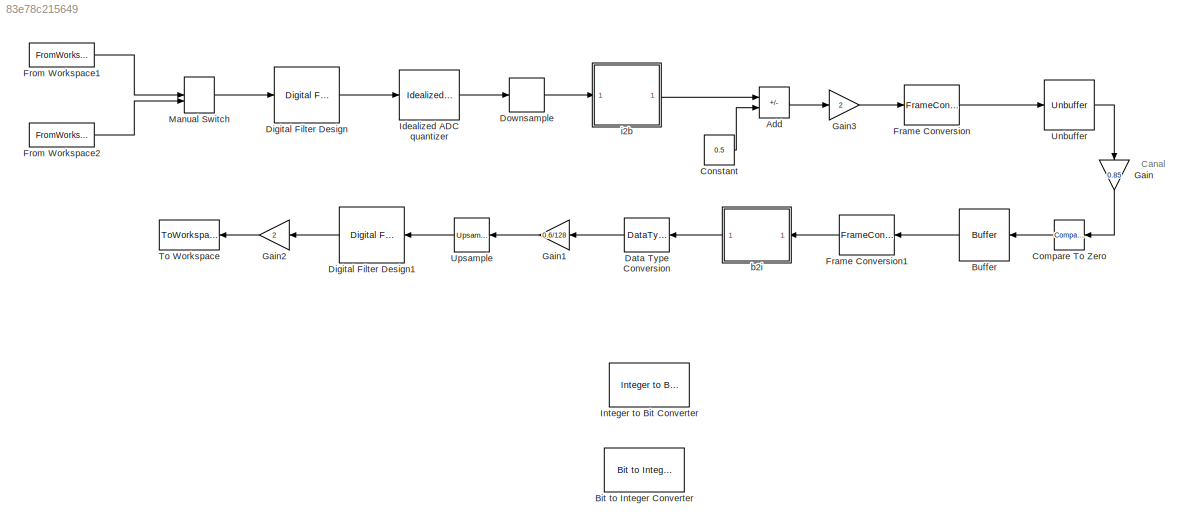
MODEL slx_83e78c215649
KIND model
CONFIG AbsTol = auto
CONFIG EnableMultiTasking = on
CONFIG FixedStep = auto
CONFIG MaxStep = auto
CONFIG MinStep = auto
CONFIG RelTol = 1e-3
CONFIG SampleTimeConstraint = Unconstrained
CONFIG SolverName = FixedStepDiscrete
CONFIG StartTime = 0.0
CONFIG StopTime = 8.75
BLOCK [Sum] Add
  IconShape = rectangular
  Inputs = +-
  Ports = [2, 1]
BLOCK [Reference] Bit to Integer Converter  REF=commutil2/Bit to Integer
Converter
  Ports = [1, 1]
  SourceBlock = commutil2/Bit to Integer\nConverter
  SourceProductBaseCode = CM
  SourceType = Bit to Integer Converter
BLOCK [Buffer] Buffer
  N = 8
BLOCK [Reference] Compare To Zero  REF=simulink/Logic and Bit
Operations/Compare
To Zero
  Ports = [1, 1]
  SourceBlock = simulink/Logic and Bit\nOperations/Compare\nTo Zero
  SourceProductBaseCode = SL
  SourceType = Compare To Zero
BLOCK [Constant] Constant
  Value = 0.5
BLOCK [DataTypeConversion] Data Type Conversion
  OutDataTypeStr = double
  RndMeth = Floor
  SaturateOnIntegerOverflow = off
BLOCK [Reference] Digital Filter Design  REF=dsparch4/Digital
Filter Design
  Ports = [1, 1]
  SourceBlock = dsparch4/Digital\nFilter Design
  SourceProductBaseCode = DS
  SourceType = Digital Filter Design
  UserDataPersistent = on
BLOCK [Reference] Digital Filter Design1  REF=dsparch4/Digital
Filter Design
  Ports = [1, 1]
  SourceBlock = dsparch4/Digital\nFilter Design
  SourceProductBaseCode = DS
  SourceType = Digital Filter Design
  UserDataPersistent = on
BLOCK [DownSample] Downsample
  InputProcessing = Elements as channels (sample based)
  RateOptions = Allow multirate processing
  UserDataPersistent = on
BLOCK [FrameConversion] Frame Conversion
  Ports = [1, 1]
BLOCK [FrameConversion] Frame Conversion1
  OutFrame = Sample-based
  Ports = [1, 1]
BLOCK [FromWorkspace] From Workspace1
  Interpolate = off
  OutputAfterFinalValue = Setting to zero
  SampleTime = 1/16000
  VariableName = Sonm16
BLOCK [FromWorkspace] From Workspace2
  Interpolate = off
  OutputAfterFinalValue = Setting to zero
  SampleTime = 1/16000
  VariableName = Sonf16
BLOCK [Gain] Gain
  Gain = 0.85
  NameLocation = left
BLOCK [Gain] Gain1
  Gain = 0.6/128
  NameLocation = top
BLOCK [Gain] Gain2
  Gain = 2
  NameLocation = top
BLOCK [Gain] Gain3
  Gain = 2
  NameLocation = top
BLOCK [Reference] Idealized ADC quantizer  REF=simulink_extras/Additional
Discrete/Idealized ADC quantizer
  AttributesFormatString = (settings: %<NumberOfConverterBits>-bit converter\nVmin: %<Vmin>, Vmax: %<Vmax>)
  Ports = [1, 1]
  SourceBlock = simulink_extras/Additional\nDiscrete/Idealized ADC quantizer
  SourceProductBaseCode = SL
  SourceType = IdealADC
BLOCK [Reference] Integer to Bit Converter  REF=commutil2/Integer to Bit
Converter
  Ports = [1, 1]
  SourceBlock = commutil2/Integer to Bit\nConverter
  SourceProductBaseCode = CM
  SourceType = Integer to Bit Converter
BLOCK [ManualSwitch] Manual Switch
BLOCK [ToWorkspace] To Workspace
  MaxDataPoints = inf
  Ports = [1]
  SampleTime = -1
  Save2DSignal = 2-D array (concatenate along first dimension)
  VariableName = y
BLOCK [Unbuffer] Unbuffer
  Ports = [1, 1]
BLOCK [Reference] Upsample  REF=dspsigops/Upsample
  Ports = [1, 1]
  SourceBlock = dspsigops/Upsample
  SourceProductBaseCode = DS
  SourceType = Upsample
  UserDataPersistent = on
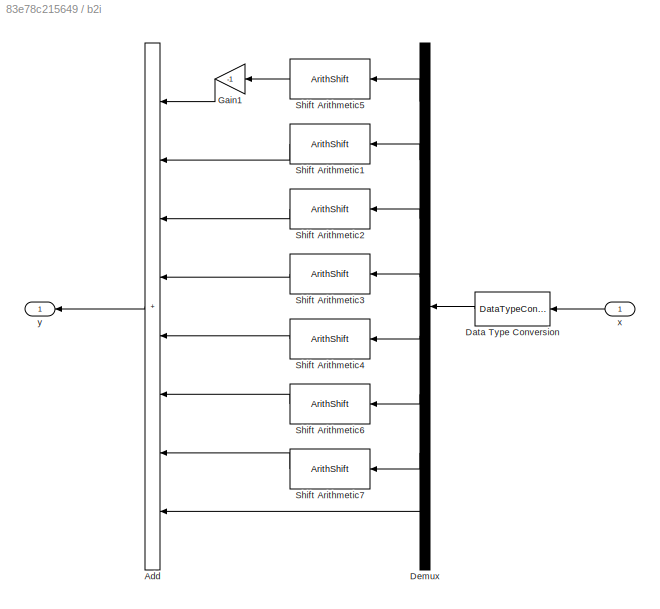
BLOCK [SubSystem] b2i
  Ports = [1, 1]
  RequestExecContextInheritance = off
BLOCK [Sum] b2i/Add
  IconShape = rectangular
  Inputs = ++++++++
  Ports = [8, 1]
BLOCK [DataTypeConversion] b2i/Data Type Conversion
  OutDataTypeStr = int8
  RndMeth = Round
  SaturateOnIntegerOverflow = off
BLOCK [Demux] b2i/Demux
  Outputs = 8
  Ports = [1, 8]
BLOCK [Gain] b2i/Gain1
  Gain = -1
  NameLocation = top
  OutDataTypeStr = int8
BLOCK [ArithShift] b2i/Shift Arithmetic1
  BitShiftDirection = Left
  BitShiftNumber = 6
  InputPortMap = u0
  Ports = [1, 1]
BLOCK [ArithShift] b2i/Shift Arithmetic2
  BitShiftDirection = Left
  BitShiftNumber = 5
  InputPortMap = u0
  Ports = [1, 1]
BLOCK [ArithShift] b2i/Shift Arithmetic3
  BitShiftDirection = Left
  BitShiftNumber = 4
  InputPortMap = u0
  Ports = [1, 1]
BLOCK [ArithShift] b2i/Shift Arithmetic4
  BitShiftDirection = Left
  BitShiftNumber = 3
  InputPortMap = u0
  Ports = [1, 1]
BLOCK [ArithShift] b2i/Shift Arithmetic5
  BitShiftDirection = Left
  BitShiftNumber = 7
  InputPortMap = u0
  Ports = [1, 1]
BLOCK [ArithShift] b2i/Shift Arithmetic6
  BitShiftDirection = Left
  BitShiftNumber = 2
  InputPortMap = u0
  Ports = [1, 1]
BLOCK [ArithShift] b2i/Shift Arithmetic7
  BitShiftDirection = Left
  BitShiftNumber = 1
  InputPortMap = u0
  Ports = [1, 1]
BLOCK [Inport] b2i/x
BLOCK [Outport] b2i/y
  VectorParamsAs1DForOutWhenUnconnected = off
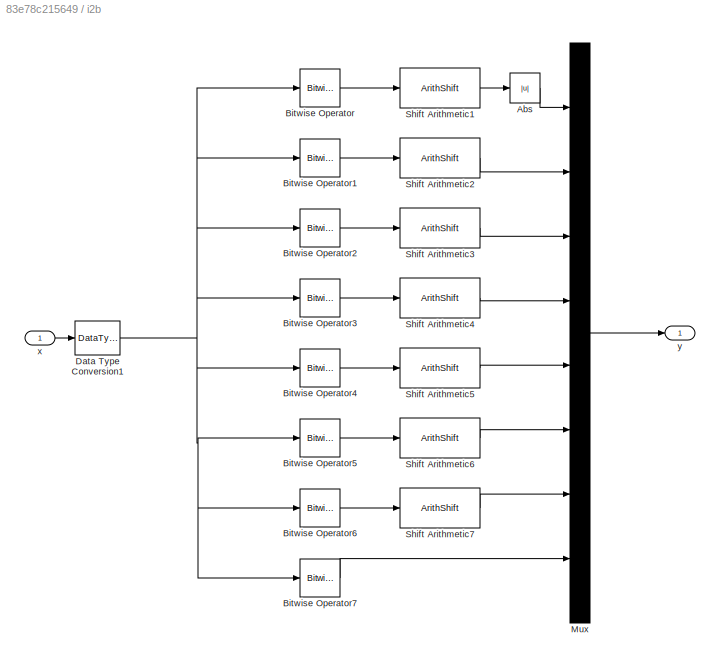
BLOCK [SubSystem] i2b
  Ports = [1, 1]
  RequestExecContextInheritance = off
BLOCK [Abs] i2b/Abs
  SaturateOnIntegerOverflow = off
BLOCK [Reference] i2b/Bitwise Operator  REF=simulink/Logic and Bit
Operations/Bitwise
Operator
  Ports = [1, 1]
  SourceBlock = simulink/Logic and Bit\nOperations/Bitwise\nOperator
  SourceProductBaseCode = SL
  SourceType = Bitwise Operator
BLOCK [Reference] i2b/Bitwise Operator1  REF=simulink/Logic and Bit
Operations/Bitwise
Operator
  Ports = [1, 1]
  SourceBlock = simulink/Logic and Bit\nOperations/Bitwise\nOperator
  SourceProductBaseCode = SL
  SourceType = Bitwise Operator
BLOCK [Reference] i2b/Bitwise Operator2  REF=simulink/Logic and Bit
Operations/Bitwise
Operator
  Ports = [1, 1]
  SourceBlock = simulink/Logic and Bit\nOperations/Bitwise\nOperator
  SourceProductBaseCode = SL
  SourceType = Bitwise Operator
BLOCK [Reference] i2b/Bitwise Operator3  REF=simulink/Logic and Bit
Operations/Bitwise
Operator
  Ports = [1, 1]
  SourceBlock = simulink/Logic and Bit\nOperations/Bitwise\nOperator
  SourceProductBaseCode = SL
  SourceType = Bitwise Operator
BLOCK [Reference] i2b/Bitwise Operator4  REF=simulink/Logic and Bit
Operations/Bitwise
Operator
  Ports = [1, 1]
  SourceBlock = simulink/Logic and Bit\nOperations/Bitwise\nOperator
  SourceProductBaseCode = SL
  SourceType = Bitwise Operator
BLOCK [Reference] i2b/Bitwise Operator5  REF=simulink/Logic and Bit
Operations/Bitwise
Operator
  Ports = [1, 1]
  SourceBlock = simulink/Logic and Bit\nOperations/Bitwise\nOperator
  SourceProductBaseCode = SL
  SourceType = Bitwise Operator
BLOCK [Reference] i2b/Bitwise Operator6  REF=simulink/Logic and Bit
Operations/Bitwise
Operator
  Ports = [1, 1]
  SourceBlock = simulink/Logic and Bit\nOperations/Bitwise\nOperator
  SourceProductBaseCode = SL
  SourceType = Bitwise Operator
BLOCK [Reference] i2b/Bitwise Operator7  REF=simulink/Logic and Bit
Operations/Bitwise
Operator
  Ports = [1, 1]
  SourceBlock = simulink/Logic and Bit\nOperations/Bitwise\nOperator
  SourceProductBaseCode = SL
  SourceType = Bitwise Operator
BLOCK [DataTypeConversion] i2b/Data Type Conversion1
  OutDataTypeStr = int8
  RndMeth = Floor
  SaturateOnIntegerOverflow = off
BLOCK [Mux] i2b/Mux
  DisplayOption = bar
  Inputs = 8
  Ports = [8, 1]
BLOCK [ArithShift] i2b/Shift Arithmetic1
  BitShiftDirection = Right
  BitShiftNumber = 7
  InputPortMap = u0
  Ports = [1, 1]
BLOCK [ArithShift] i2b/Shift Arithmetic2
  BitShiftDirection = Right
  BitShiftNumber = 6
  InputPortMap = u0
  Ports = [1, 1]
BLOCK [ArithShift] i2b/Shift Arithmetic3
  BitShiftDirection = Right
  BitShiftNumber = 5
  InputPortMap = u0
  Ports = [1, 1]
BLOCK [ArithShift] i2b/Shift Arithmetic4
  BitShiftDirection = Right
  BitShiftNumber = 4
  InputPortMap = u0
  Ports = [1, 1]
BLOCK [ArithShift] i2b/Shift Arithmetic5
  BitShiftDirection = Right
  BitShiftNumber = 3
  InputPortMap = u0
  Ports = [1, 1]
BLOCK [ArithShift] i2b/Shift Arithmetic6
  BitShiftDirection = Right
  BitShiftNumber = 2
  InputPortMap = u0
  Ports = [1, 1]
BLOCK [ArithShift] i2b/Shift Arithmetic7
  BitShiftDirection = Right
  BitShiftNumber = 1
  InputPortMap = u0
  Ports = [1, 1]
BLOCK [Inport] i2b/x
BLOCK [Outport] i2b/y
  VectorParamsAs1DForOutWhenUnconnected = off
ANNOTATION (root): Canal
LINE Add:1 -> Gain3:1
LINE Buffer:1 -> Frame Conversion1:1
LINE Compare To Zero:1 -> Buffer:1
LINE Constant:1 -> Add:2
LINE Data Type Conversion:1 -> Gain1:1
LINE Digital Filter Design1:1 -> Gain2:1
LINE Digital Filter Design:1 -> Idealized ADC quantizer:1
LINE Downsample:1 -> i2b:1
LINE Frame Conversion1:1 -> b2i:1
LINE Frame Conversion:1 -> Unbuffer:1
LINE From Workspace1:1 -> Manual Switch:1
LINE From Workspace2:1 -> Manual Switch:2
LINE Gain1:1 -> Upsample:1
LINE Gain2:1 -> To Workspace:1
LINE Gain3:1 -> Frame Conversion:1
LINE Gain:1 -> Compare To Zero:1
LINE Idealized ADC quantizer:1 -> Downsample:1
LINE Manual Switch:1 -> Digital Filter Design:1
LINE Unbuffer:1 -> Gain:1
LINE Upsample:1 -> Digital Filter Design1:1
LINE b2i/Add:1 -> b2i/y:1
LINE b2i/Data Type Conversion:1 -> b2i/Demux:1
LINE b2i/Demux:1 -> b2i/Shift Arithmetic5:1
LINE b2i/Demux:2 -> b2i/Shift Arithmetic1:1
LINE b2i/Demux:3 -> b2i/Shift Arithmetic2:1
LINE b2i/Demux:4 -> b2i/Shift Arithmetic3:1
LINE b2i/Demux:5 -> b2i/Shift Arithmetic4:1
LINE b2i/Demux:6 -> b2i/Shift Arithmetic6:1
LINE b2i/Demux:7 -> b2i/Shift Arithmetic7:1
LINE b2i/Demux:8 -> b2i/Add:8
LINE b2i/Gain1:1 -> b2i/Add:1
LINE b2i/Shift Arithmetic1:1 -> b2i/Add:2
LINE b2i/Shift Arithmetic2:1 -> b2i/Add:3
LINE b2i/Shift Arithmetic3:1 -> b2i/Add:4
LINE b2i/Shift Arithmetic4:1 -> b2i/Add:5
LINE b2i/Shift Arithmetic5:1 -> b2i/Gain1:1
LINE b2i/Shift Arithmetic6:1 -> b2i/Add:6
LINE b2i/Shift Arithmetic7:1 -> b2i/Add:7
LINE b2i/x:1 -> b2i/Data Type Conversion:1
LINE b2i:1 -> Data Type Conversion:1
LINE i2b/Abs:1 -> i2b/Mux:1
LINE i2b/Bitwise Operator1:1 -> i2b/Shift Arithmetic2:1
LINE i2b/Bitwise Operator2:1 -> i2b/Shift Arithmetic3:1
LINE i2b/Bitwise Operator3:1 -> i2b/Shift Arithmetic4:1
LINE i2b/Bitwise Operator4:1 -> i2b/Shift Arithmetic5:1
LINE i2b/Bitwise Operator5:1 -> i2b/Shift Arithmetic6:1
LINE i2b/Bitwise Operator6:1 -> i2b/Shift Arithmetic7:1
LINE i2b/Bitwise Operator7:1 -> i2b/Mux:8
LINE i2b/Bitwise Operator:1 -> i2b/Shift Arithmetic1:1
NET i2b/Data Type Conversion1:1 -> i2b/Bitwise Operator1:1, i2b/Bitwise Operator2:1, i2b/Bitwise Operator3:1, i2b/Bitwise Operator4:1, i2b/Bitwise Operator5:1, i2b/Bitwise Operator6:1, i2b/Bitwise Operator7:1, i2b/Bitwise Operator:1
LINE i2b/Mux:1 -> i2b/y:1
LINE i2b/Shift Arithmetic1:1 -> i2b/Abs:1
LINE i2b/Shift Arithmetic2:1 -> i2b/Mux:2
LINE i2b/Shift Arithmetic3:1 -> i2b/Mux:3
LINE i2b/Shift Arithmetic4:1 -> i2b/Mux:4
LINE i2b/Shift Arithmetic5:1 -> i2b/Mux:5
LINE i2b/Shift Arithmetic6:1 -> i2b/Mux:6
LINE i2b/Shift Arithmetic7:1 -> i2b/Mux:7
LINE i2b/x:1 -> i2b/Data Type Conversion1:1
LINE i2b:1 -> Add:1
note: NET lines group one-source signal fan-out (src -> all destinations, sorted); 1:1 wires keep LINE
